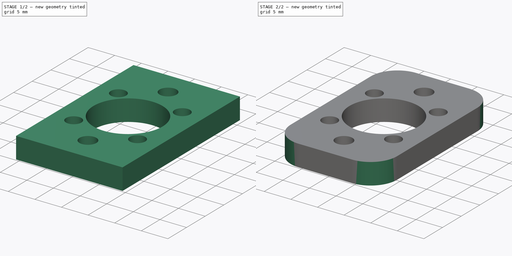
[diagram: build sequence overview — one tinted view per stage of 2, left to right]
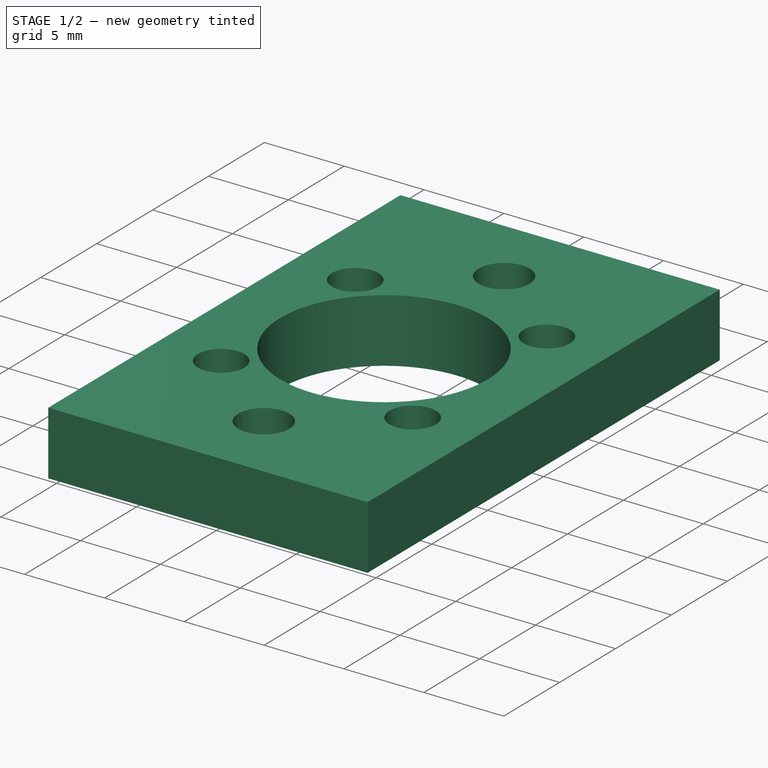
[diagram: stage 1 of 2 — iso view after this stage's code; geometry added in this stage tinted green]
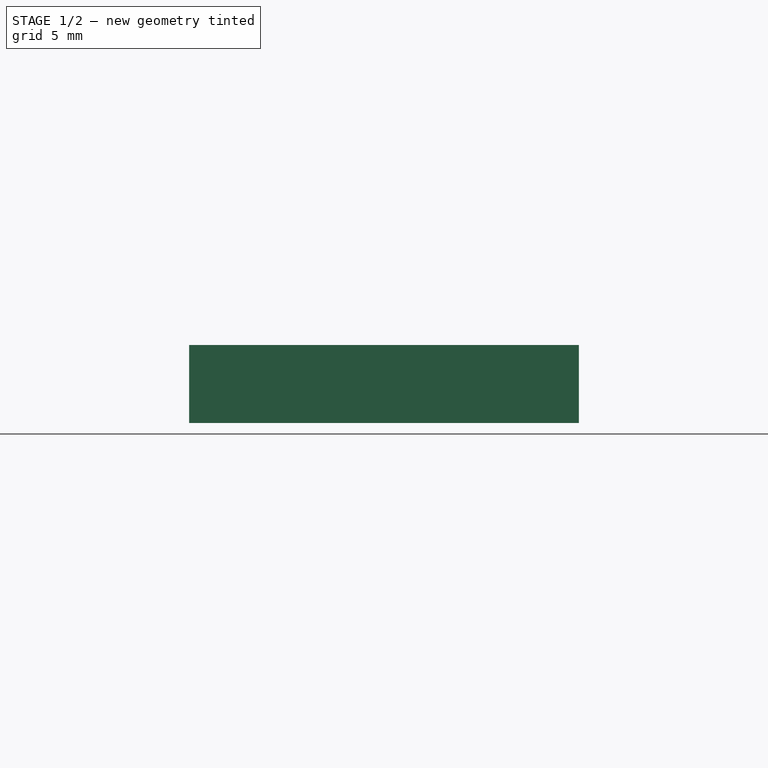
[diagram: stage 1 of 2 — front view after this stage's code; geometry added in this stage tinted green]
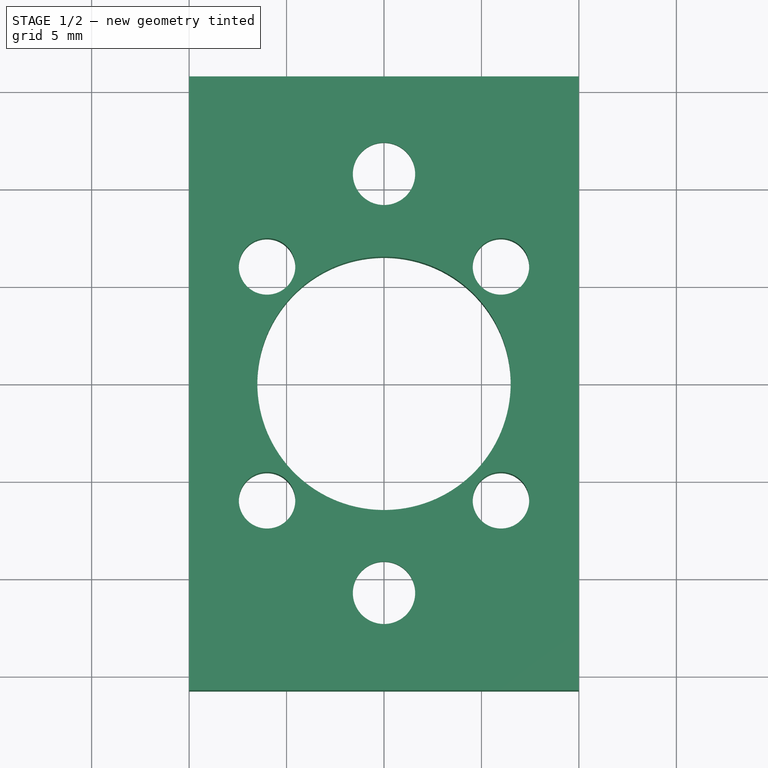
[diagram: stage 1 of 2 — top view after this stage's code; geometry added in this stage tinted green]
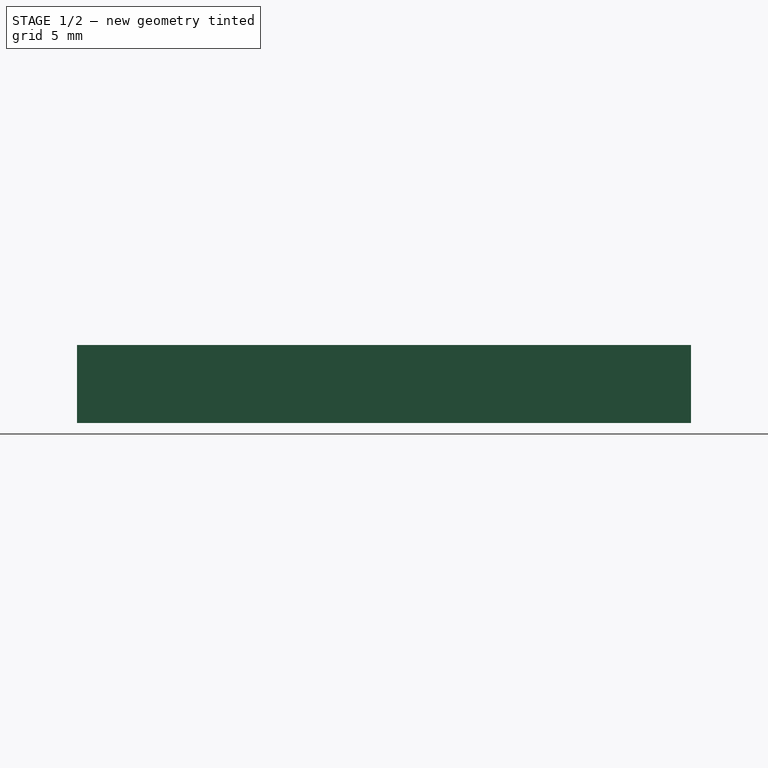
[diagram: stage 1 of 2 — right view after this stage's code; geometry added in this stage tinted green]
FCSTD DOCUMENT  (FreeCAD 0.18R15441 (Git))
Label: ZThreaderRodClip_THSL-200-8D
License: All rights reserved
LicenseURL: http://en.wikipedia.org/wiki/All_rights_reserved
objects: Sketcher::SketchObject×2, PartDesign::Pad×1, PartDesign::Pocket×1, PartDesign::Fillet×1, PartDesign::Body×1, App::Part×1
note: 8 computed .brp shape members not serialized (recipe doc carries the construction recipe); baked Part::Feature solids carry a one-line shape summary decoded from their .brp

FEATURE [Sketcher::SketchObject] Sketch  label="BaseSketch"
  MapMode = 5
  Support = -> [XY_Plane001]
  sketch-geometry (15):
    g0: LineSegment StartX=-10 StartY=15.75 StartZ=0 EndX=10 EndY=15.75 EndZ=0
    g1: LineSegment StartX=10 StartY=15.75 StartZ=0 EndX=10 EndY=-15.75 EndZ=0
    g2: LineSegment StartX=10 StartY=-15.75 StartZ=0 EndX=-10 EndY=-15.75 EndZ=0
    g3: LineSegment StartX=-10 StartY=-15.75 StartZ=0 EndX=-10 EndY=15.75 EndZ=0
    g4: Circle CenterX=0 CenterY=10.75 CenterZ=0 NormalX=0 NormalY=0 NormalZ=1 AngleXU=0 Radius=1.6
    g5: Circle CenterX=0 CenterY=-10.75 CenterZ=0 NormalX=0 NormalY=0 NormalZ=1 AngleXU=0 Radius=1.6
    g6: Circle CenterX=0 CenterY=0 CenterZ=0 NormalX=0 NormalY=0 NormalZ=1 AngleXU=0 Radius=6.5
    g7: LineSegment [constr] StartX=-6 StartY=6 StartZ=0 EndX=6 EndY=6 EndZ=0
    g8: LineSegment [constr] StartX=6 StartY=6 StartZ=0 EndX=6 EndY=-6 EndZ=0
    g9: LineSegment [constr] StartX=6 StartY=-6 StartZ=0 EndX=-6 EndY=-6 EndZ=0
    g10: LineSegment [constr] StartX=-6 StartY=-6 StartZ=0 EndX=-6 EndY=6 EndZ=0
    g11: Circle CenterX=6 CenterY=6 CenterZ=0 NormalX=0 NormalY=0 NormalZ=1 AngleXU=0 Radius=1.45
    g12: Circle CenterX=6 CenterY=-6 CenterZ=0 NormalX=0 NormalY=0 NormalZ=1 AngleXU=0 Radius=1.45
    g13: Circle CenterX=-6 CenterY=-6 CenterZ=0 NormalX=0 NormalY=0 NormalZ=1 AngleXU=0 Radius=1.45
    g14: Circle CenterX=-6 CenterY=6 CenterZ=0 NormalX=0 NormalY=0 NormalZ=1 AngleXU=0 Radius=1.45
  constraints (35):
    c: Coincident(g0,g1)
    c: Coincident(g1,g2)
    c: Coincident(g2,g3)
    c: Coincident(g3,g0)
    c: Horizontal(g2)
    c: Vertical(g1)
    c: PointOnObject(g4,g-2)
    c: Equal(g4,g5)
    c: Symmetric(g4,g5,g-1)
    c: Distance(g4,g5) = 21.5
    c: Symmetric(g2,g0,g-1)
    c: Symmetric(g0,g0,g-2)
    c: Radius(g4) = 1.6
    c: Coincident(g6,g-1)
    c: Radius(g6) = 6.5
    c: Distance(g4,g0) = 5
    c: Distance(g2) = 20
    c: Coincident(g7,g8)
    c: Coincident(g8,g9)
    c: Coincident(g9,g10)
    c: Coincident(g10,g7)
    c: Vertical(g10)
    c: Symmetric(g7,g8,g-1)
    c: Symmetric(g8,g9,g-2)
    c: Horizontal(g7)
    c: Equal(g8,g9)
    c: Distance(g8) = 12
    c: Coincident(g11,g7)
    c: Coincident(g12,g8)
    c: Coincident(g13,g9)
    c: Coincident(g14,g7)
    c: Equal(g14,g11)
    c: Equal(g11,g12)
    c: Equal(g12,g13)
    c: Radius(g14) = 1.45
FEATURE [PartDesign::Pad] Pad  label="BasePad"
  Length = 4
  Length2 = 100
  Profile = -> Sketch
  Type = 0
FEATURE [Sketcher::SketchObject] Sketch001  label="NutHolesSketch"
  ExternalGeometry = -> [Sketch]
  MapMode = 5
  Support = -> [XY_Plane001]
  sketch-geometry (14):
    g0: LineSegment StartX=-1.61658 StartY=7.95 StartZ=0 EndX=1.61658 EndY=7.95 EndZ=0
    g1: LineSegment StartX=1.61658 StartY=7.95 StartZ=0 EndX=3.23316 EndY=10.75 EndZ=0
    g2: LineSegment StartX=3.23316 StartY=10.75 StartZ=0 EndX=1.61658 EndY=13.55 EndZ=0
    g3: LineSegment StartX=1.61658 StartY=13.55 StartZ=0 EndX=-1.61658 EndY=13.55 EndZ=0
    g4: LineSegment StartX=-1.61658 StartY=13.55 StartZ=0 EndX=-3.23316 EndY=10.75 EndZ=0
    g5: LineSegment StartX=-3.23316 StartY=10.75 StartZ=0 EndX=-1.61658 EndY=7.95 EndZ=0
    g6: Circle [constr] CenterX=0 CenterY=10.75 CenterZ=0 NormalX=0 NormalY=0 NormalZ=1 AngleXU=0 Radius=3.23316
    g7: LineSegment StartX=-1.61658 StartY=-7.95 StartZ=0 EndX=-3.23316 EndY=-10.75 EndZ=0
    g8: LineSegment StartX=-3.23316 StartY=-10.75 StartZ=0 EndX=-1.61658 EndY=-13.55 EndZ=0
    g9: LineSegment StartX=-1.61658 StartY=-13.55 StartZ=0 EndX=1.61658 EndY=-13.55 EndZ=0
    g10: LineSegment StartX=1.61658 StartY=-13.55 StartZ=0 EndX=3.23316 EndY=-10.75 EndZ=0
    g11: LineSegment StartX=3.23316 StartY=-10.75 StartZ=0 EndX=1.61658 EndY=-7.95 EndZ=0
    g12: LineSegment StartX=1.61658 StartY=-7.95 StartZ=0 EndX=-1.61658 EndY=-7.95 EndZ=0
    g13: Circle [constr] CenterX=0 CenterY=-10.75 CenterZ=0 NormalX=0 NormalY=0 NormalZ=1 AngleXU=0 Radius=3.23316
  constraints (32):
    c: Coincident(g0,g1)
    c: Coincident(g1,g2)
    c: Coincident(g2,g3)
    c: Coincident(g3,g4)
    c: Coincident(g4,g5)
    c: Coincident(g5,g0)
    c: Equal(g0, g1-g5) x5
    c: PointOnObject(g0,g6)
    c: PointOnObject(g1,g6)
    c: PointOnObject(g2,g6)
    c: PointOnObject(g3,g6)
    c: PointOnObject(g4,g6)
    c: PointOnObject(g5,g6)
    c: Coincident(g6,g-3)
    c: Coincident(g7,g8)
    c: Coincident(g8,g9)
    c: Coincident(g9,g10)
    c: Coincident(g10,g11)
    c: Coincident(g11,g12)
    c: Coincident(g12,g7)
    c: Equal(g7, g8-g12) x5
    c: PointOnObject(g7,g13)
    c: PointOnObject(g8,g13)
    c: PointOnObject(g9,g13)
    c: PointOnObject(g10,g13)
    c: PointOnObject(g11,g13)
    c: PointOnObject(g12,g13)
    c: Coincident(g13,g-4)
    c: Horizontal(g0)
    c: Horizontal(g12)
    c: Equal(g0,g12)
    c: Distance(g3,g0) = 5.6
FEATURE [PartDesign::Pocket] Pocket  label="NutHolesPocket"
  BaseFeature = -> Pad
  Length = 2.5
  Length2 = 100
  Profile = -> Sketch001
  Reversed = true
  Type = 0
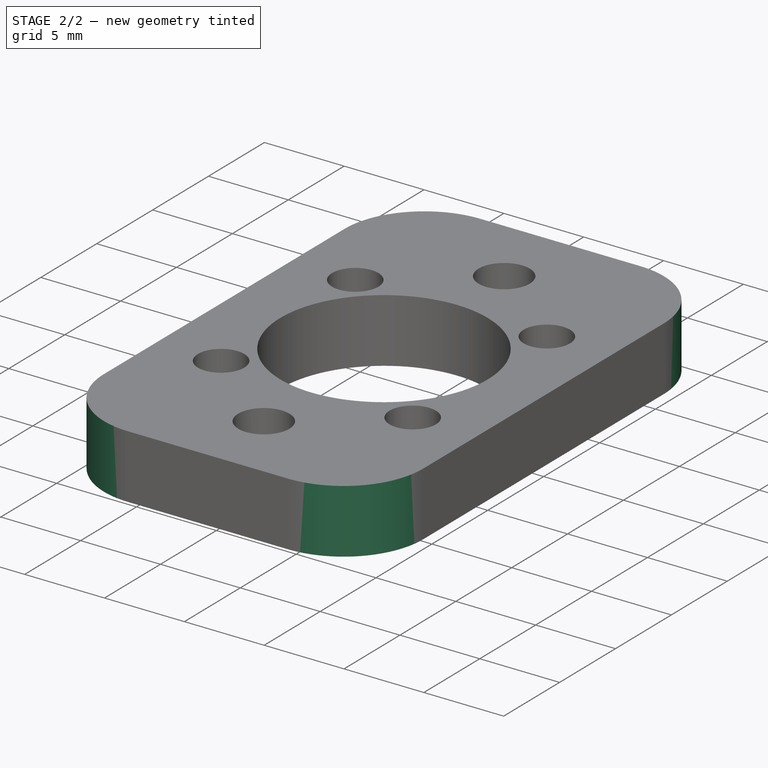
[diagram: stage 2 of 2 — iso view after this stage's code; geometry added in this stage tinted green]
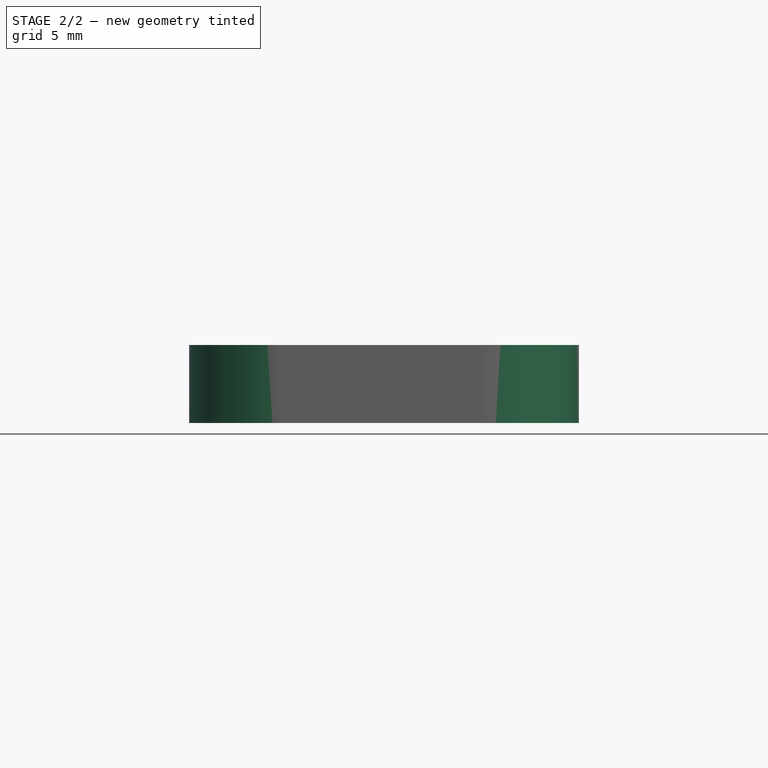
[diagram: stage 2 of 2 — front view after this stage's code; geometry added in this stage tinted green]
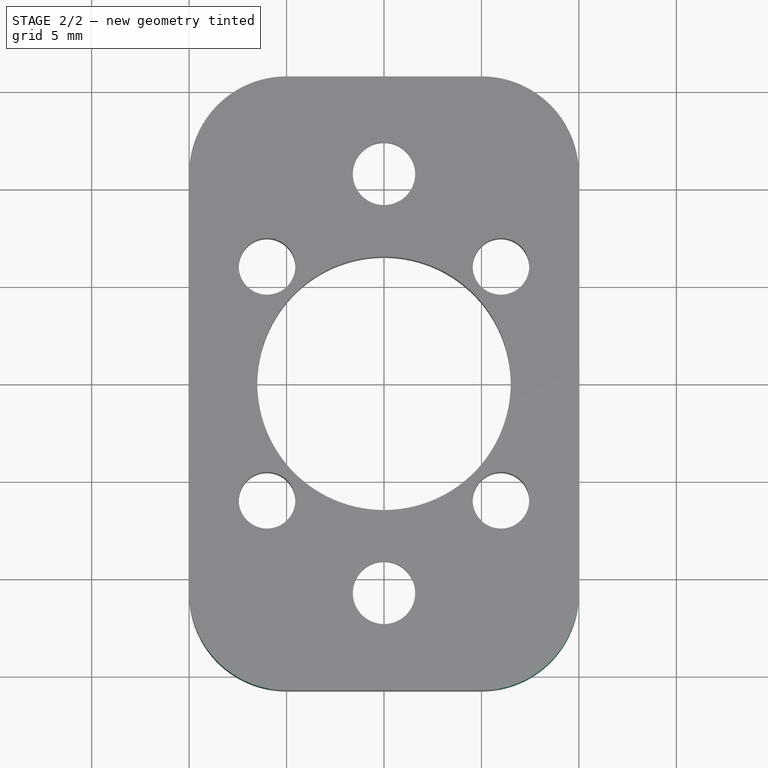
[diagram: stage 2 of 2 — top view after this stage's code; geometry added in this stage tinted green]
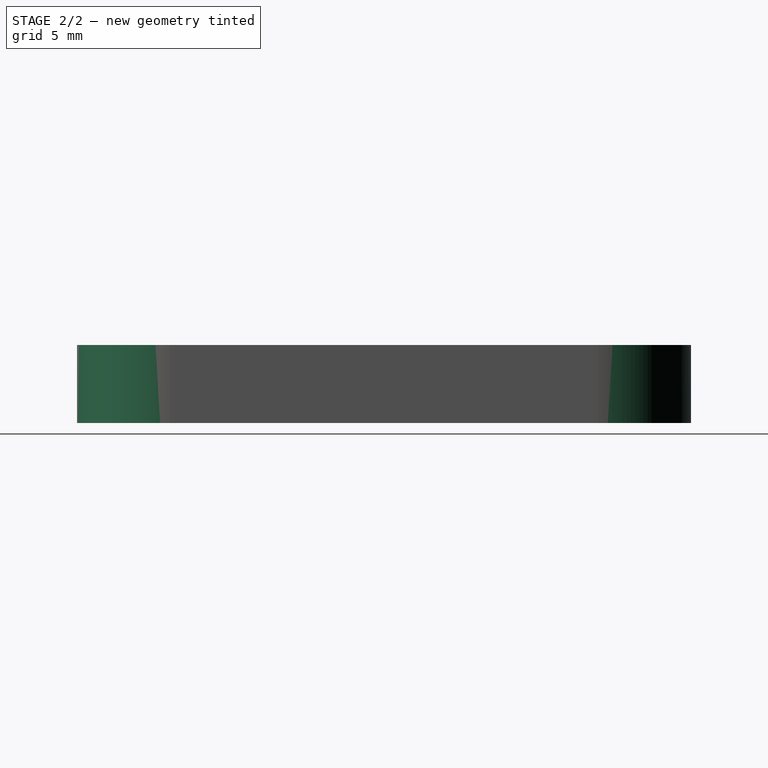
[diagram: stage 2 of 2 — right view after this stage's code; geometry added in this stage tinted green]
FEATURE [PartDesign::Fillet] Fillet  label="CornersFillet"
  Base = -> Pocket [Edge8,Edge2,Edge1,Edge5]
  BaseFeature = -> Pocket
  Radius = 5
FEATURE [PartDesign::Body] Body  label="ZClipBody"
  Group = -> [Sketch,Pad,Sketch001,Pocket,Fillet]
  Origin = -> Origin001
  Tip = -> Fillet
FEATURE [App::Part] Part  label="ZThreadedRodClipPart"
  Group = -> [Body]
  License = CC BY 3.0
  LicenseURL = http://creativecommons.org/licenses/by/3.0/
  Origin = -> Origin
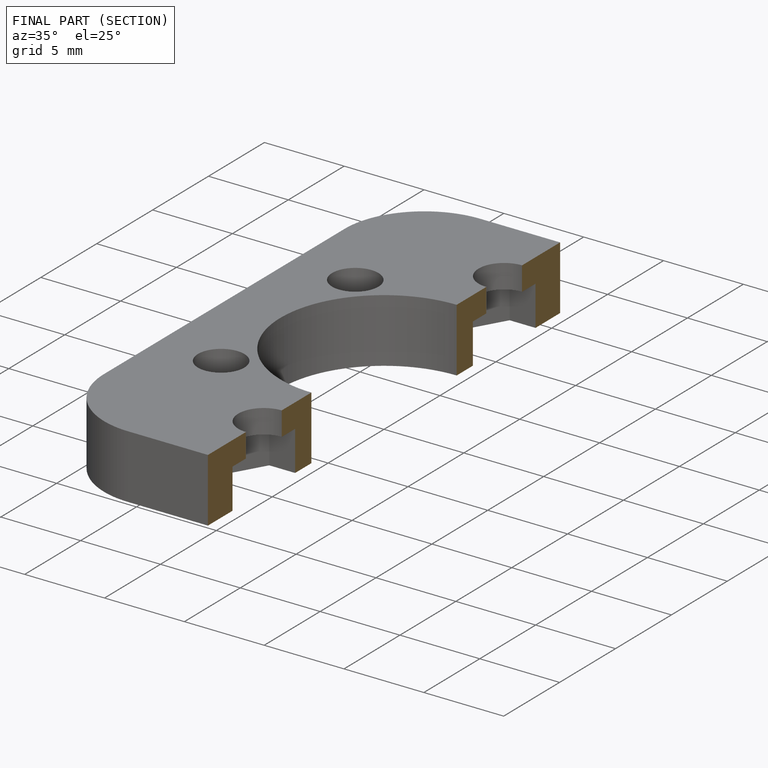
[diagram: finished part — half-section view (interior)]
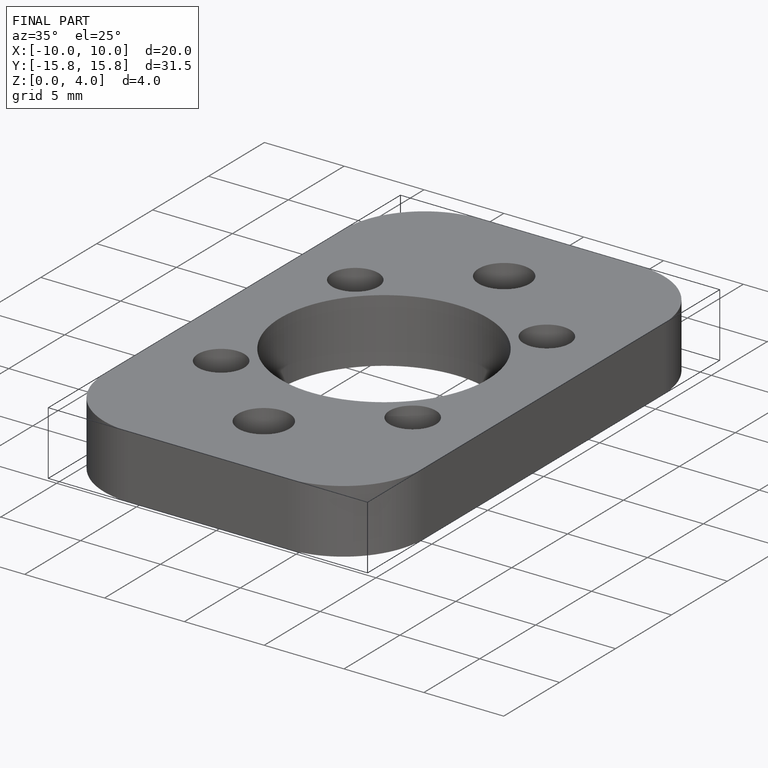
[diagram: finished part — iso view with bounding-box wireframe]
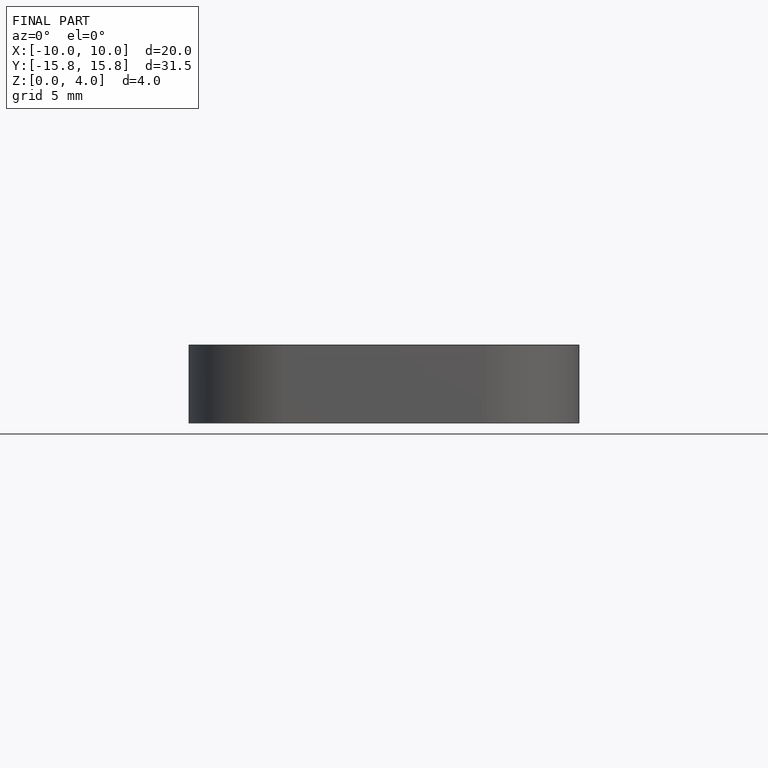
[diagram: finished part — front view with bounding-box wireframe]
